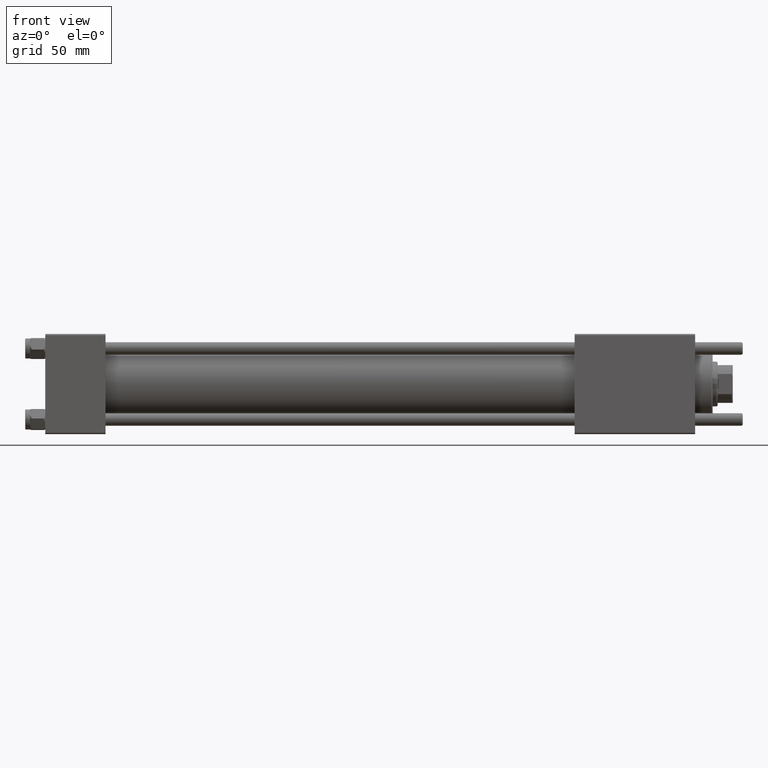
[diagram: clean part render]
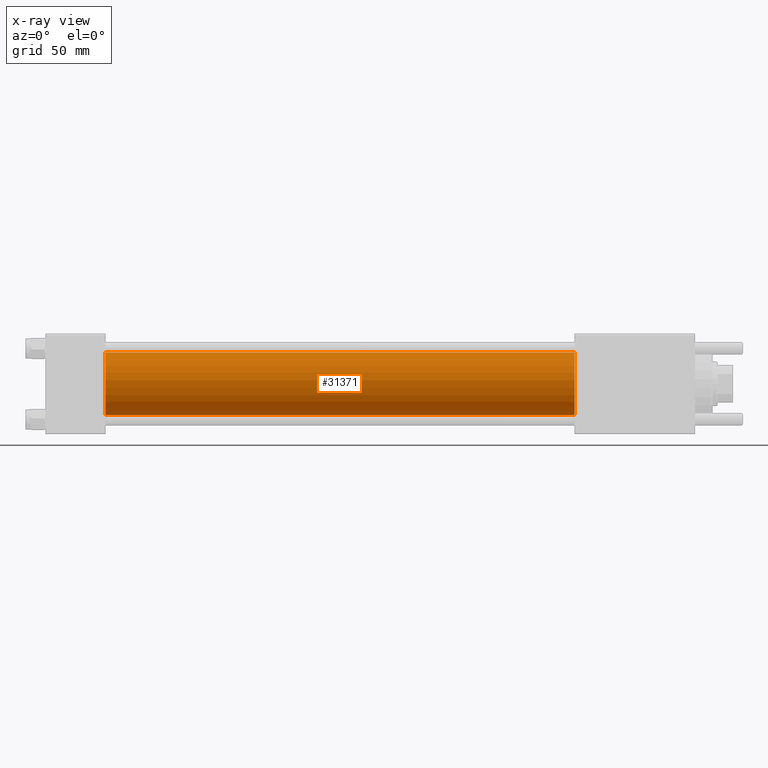
[diagram: x-ray — body ghosted, one internal face saturated and labeled with its STEP entity id]
A machine part, front view, then the same camera in x-ray: the body is ghosted and one INTERNAL B-rep face — a face not visible from any outside direction — is saturated and labeled: STEP entity #31371.
In plain terms, the highlighted cylindrical surface (edge-blend (fillet) strip) has radius 12.5 mm, axis along (-1, -0, -0).
Its self-contained STEP definition (entity closure, byte-faithful):
#1010 = DIRECTION ( 'NONE',  ( 0.000000000000000000, 0.000000000000000000, -1.000000000000000000 ) ) ;
#3587 = VERTEX_POINT ( 'NONE', #37114 ) ;
#3688 = CARTESIAN_POINT ( 'NONE',  ( 211.0000000000000000, -2.602085213965210642E-15, 0.000000000000000000 ) ) ;
#4440 = CARTESIAN_POINT ( 'NONE',  ( 211.0000000000000000, -1.071276715031019515E-15, -12.49999999999999645 ) ) ;
#6103 = EDGE_CURVE ( 'NONE', #34392, #55641, #20093, .T. ) ;
#7940 = DIRECTION ( 'NONE',  ( 0.000000000000000000, 0.000000000000000000, -1.000000000000000000 ) ) ;
#10809 = ORIENTED_EDGE ( 'NONE', *, *, #15979, .F. ) ;
#13781 = DIRECTION ( 'NONE',  ( -1.000000000000000000, -0.000000000000000000, -0.000000000000000000 ) ) ;
#15979 = EDGE_CURVE ( 'NONE', #3587, #37906, #48471, .T. ) ;
#19532 = CARTESIAN_POINT ( 'NONE',  ( 211.0000000000000000, -1.071276715031019515E-15, -12.49999999999999645 ) ) ;
#20093 = LINE ( 'NONE', #19532, #49066 ) ;
#20598 = CYLINDRICAL_SURFACE ( 'NONE', #44695, 12.49999999999999645 ) ;
#22738 = CARTESIAN_POINT ( 'NONE',  ( 24.00000000000000000, -2.602085213965210642E-15, 0.000000000000000000 ) ) ;
#24925 = CIRCLE ( 'NONE', #32266, 12.49999999999999645 ) ;
#31371 = ADVANCED_FACE ( 'NONE', ( #34344 ), #20598, .F. ) ;
#32266 = AXIS2_PLACEMENT_3D ( 'NONE', #22738, #43772, #7940 ) ;
#34344 = FACE_OUTER_BOUND ( 'NONE', #51737, .T. ) ;
#34392 = VERTEX_POINT ( 'NONE', #4440 ) ;
#37114 = CARTESIAN_POINT ( 'NONE',  ( 211.0000000000000000, -2.602085213965210642E-15, 12.49999999999999645 ) ) ;
#37800 = DIRECTION ( 'NONE',  ( -1.000000000000000000, -0.000000000000000000, -0.000000000000000000 ) ) ;
#37906 = VERTEX_POINT ( 'NONE', #41125 ) ;
#38496 = ORIENTED_EDGE ( 'NONE', *, *, #42663, .T. ) ;
#39142 = VECTOR ( 'NONE', #13781, 1000.000000000000000 ) ;
#39977 = DIRECTION ( 'NONE',  ( 1.000000000000000000, 0.000000000000000000, 0.000000000000000000 ) ) ;
#40550 = CARTESIAN_POINT ( 'NONE',  ( 211.0000000000000000, -2.602085213965210642E-15, 0.000000000000000000 ) ) ;
#41125 = CARTESIAN_POINT ( 'NONE',  ( 24.00000000000000000, -2.602085213965210642E-15, 12.49999999999999645 ) ) ;
#41348 = AXIS2_PLACEMENT_3D ( 'NONE', #40550, #39977, #1010 ) ;
#41610 = DIRECTION ( 'NONE',  ( -1.000000000000000000, -0.000000000000000000, -0.000000000000000000 ) ) ;
#42142 = CARTESIAN_POINT ( 'NONE',  ( 24.00000000000000000, -1.071276715031019515E-15, -12.49999999999999645 ) ) ;
#42663 = EDGE_CURVE ( 'NONE', #3587, #34392, #43185, .T. ) ;
#43185 = CIRCLE ( 'NONE', #41348, 12.49999999999999645 ) ;
#43772 = DIRECTION ( 'NONE',  ( 1.000000000000000000, 0.000000000000000000, 0.000000000000000000 ) ) ;
#44007 = EDGE_CURVE ( 'NONE', #37906, #55641, #24925, .T. ) ;
#44097 = ORIENTED_EDGE ( 'NONE', *, *, #44007, .F. ) ;
#44695 = AXIS2_PLACEMENT_3D ( 'NONE', #3688, #37800, #55598 ) ;
#48471 = LINE ( 'NONE', #52497, #39142 ) ;
#49066 = VECTOR ( 'NONE', #41610, 1000.000000000000000 ) ;
#51136 = ORIENTED_EDGE ( 'NONE', *, *, #6103, .T. ) ;
#51737 = EDGE_LOOP ( 'NONE', ( #38496, #51136, #44097, #10809 ) ) ;
#52497 = CARTESIAN_POINT ( 'NONE',  ( 211.0000000000000000, -2.602085213965210642E-15, 12.49999999999999645 ) ) ;
#55598 = DIRECTION ( 'NONE',  ( 0.000000000000000000, 0.000000000000000000, 1.000000000000000000 ) ) ;
#55641 = VERTEX_POINT ( 'NONE', #42142 ) ;